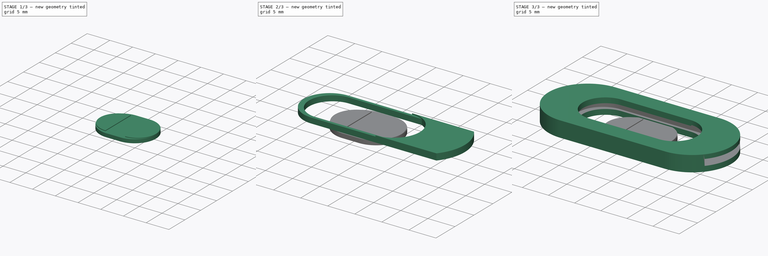
[diagram: build sequence overview — one tinted view per stage of 3, left to right]
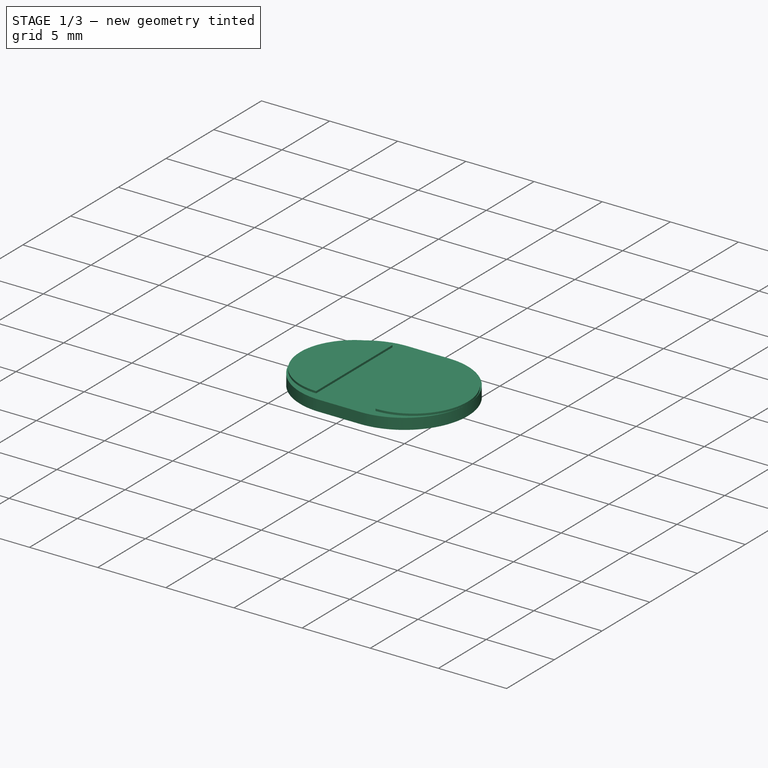
[diagram: stage 1 of 3 — iso view after this stage's code; geometry added in this stage tinted green]
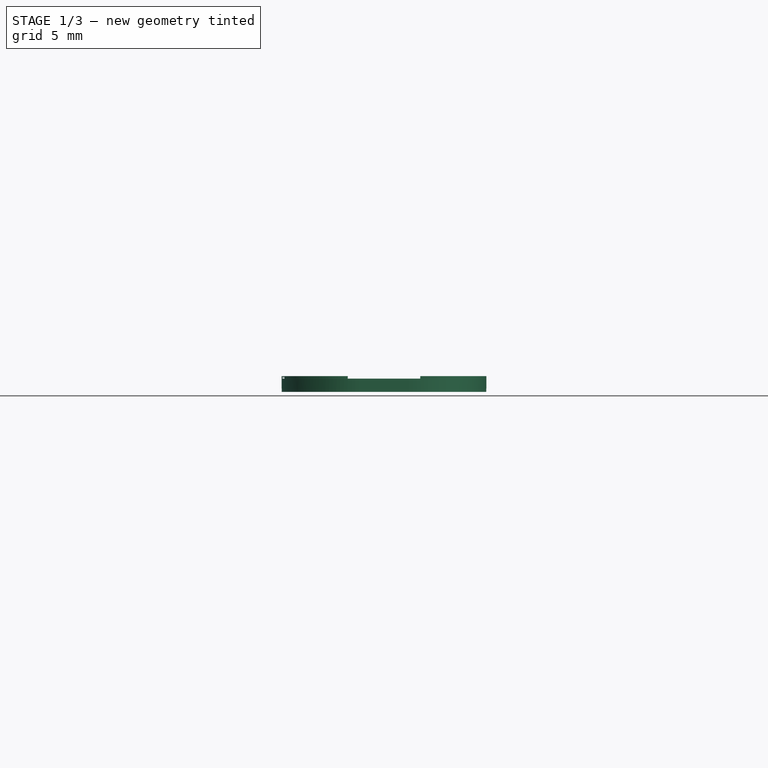
[diagram: stage 1 of 3 — front view after this stage's code; geometry added in this stage tinted green]
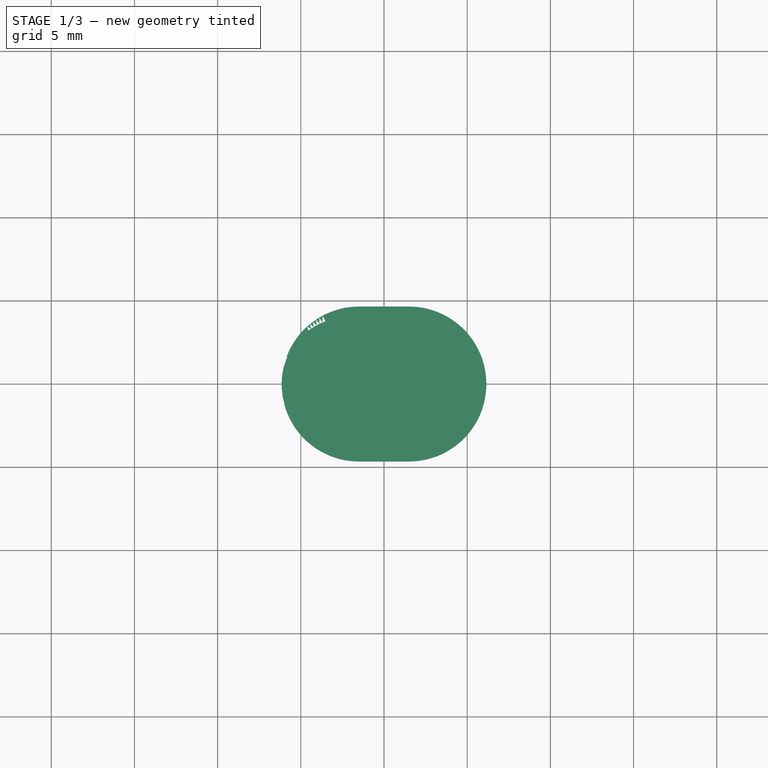
[diagram: stage 1 of 3 — top view after this stage's code; geometry added in this stage tinted green]
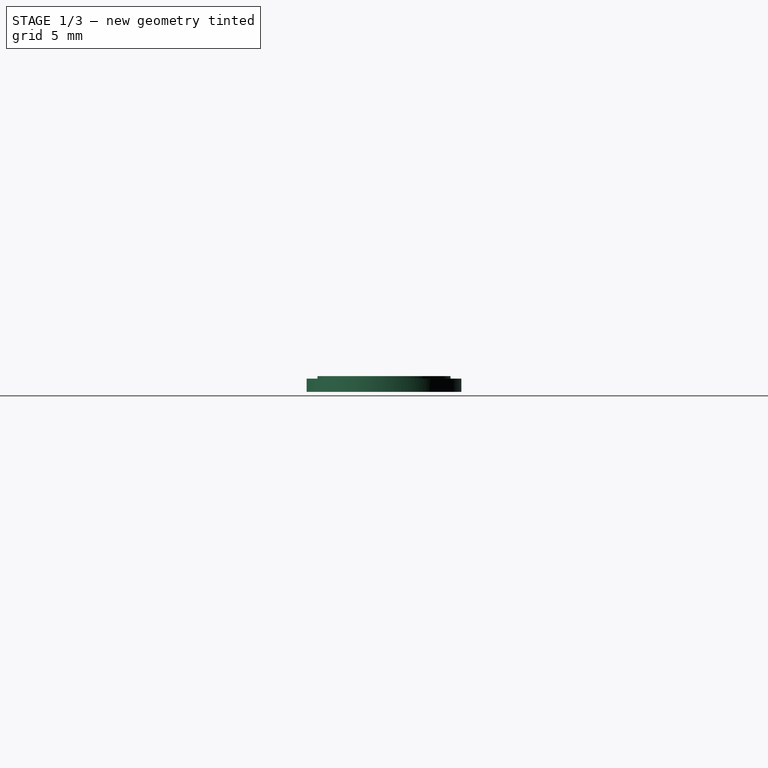
[diagram: stage 1 of 3 — right view after this stage's code; geometry added in this stage tinted green]
FCSTD DOCUMENT  (FreeCAD 0.17R13541 (Git))
Label: camera
License: All rights reserved
LicenseURL: http://en.wikipedia.org/wiki/All_rights_reserved
objects: Sketcher::SketchObject×8, Drawing::FeatureViewPython×5, Drawing::FeatureViewPart×4, PartDesign::Pad×3, Part::Extrusion×2, PartDesign::Body×2, PartDesign::ShapeBinder×1, Part::FeaturePython×1, Part::Cut×1, App::DocumentObjectGroup×1, Part::Spiral×1, Drawing::FeaturePage×1
note: 22 computed .brp shape members not serialized (recipe doc carries the construction recipe); baked Part::Feature solids carry a one-line shape summary decoded from their .brp

FEATURE [Sketcher::SketchObject] Sketch003
  MapMode = 5
  Support = -> [XY_Plane]
FEATURE [PartDesign::Body] Body  label="Cache"
  Group = -> [Sketch,Pad,Sketch001,CopyCut,Sketch002,Sketch003]
  Origin = -> Origin
  Tip = -> Pad
FEATURE [App::DocumentObjectGroup] Group  label="Support"
  Group = -> [Body,Cut]
FEATURE [Sketcher::SketchObject] Sketch004
  MapMode = 5
  Support = -> [XY_Plane001]
  sketch-geometry (4):
    g0: ArcOfCircle CenterX=-1.5 CenterY=-3e-12 CenterZ=0 NormalX=0 NormalY=0 NormalZ=1 AngleXU=0 Radius=4.65 StartAngle=1.5708 EndAngle=4.71239
    g1: ArcOfCircle CenterX=1.5 CenterY=-3e-12 CenterZ=0 NormalX=0 NormalY=0 NormalZ=1 AngleXU=0 Radius=4.65 StartAngle=4.71239 EndAngle=7.85398
    g2: LineSegment StartX=-1.5 StartY=-4.65 StartZ=0 EndX=1.5 EndY=-4.65 EndZ=0
    g3: LineSegment StartX=-1.5 StartY=4.65 StartZ=0 EndX=1.5 EndY=4.65 EndZ=0
  constraints (10):
    c: Tangent(g0,g3) = 1.5708
    c: Tangent(g0,g2) = -1.5708
    c: Tangent(g2,g1) = -1.5708
    c: Tangent(g3,g1) = 1.5708
    c: Horizontal(g2)
    c: Equal(g0,g1)
    c: Symmetric(g0,g0,g-1)
    c: Symmetric(g0,g1,g-2)
    c: DistanceY(g1,g1) = 9.3
    c: DistanceX(g2,g2) = 3
FEATURE [PartDesign::Pad] Pad001
  Length = 0.8
  Length2 = 100
  Profile = -> Sketch004
  Type = 0
FEATURE [Sketcher::SketchObject] Sketch005
  ExternalGeometry = -> [Pad001]
  MapMode = 5
  Placement = pos=(0,0,0.8) rot=(0,0,1;0rad)
  Support = -> [Pad001]
  sketch-geometry (6):
    g0: ArcOfCircle CenterX=-2.1499 CenterY=0 CenterZ=0 NormalX=0 NormalY=0 NormalZ=1 AngleXU=0 Radius=4.0001 StartAngle=1.57775 EndAngle=4.70543
    g1: ArcOfCircle CenterX=2.15 CenterY=-6.67276e-07 CenterZ=0 NormalX=0 NormalY=0 NormalZ=1 AngleXU=0 Radius=4.0001 StartAngle=4.71932 EndAngle=7.84705
    g2: GeomPoint X=-6.15 Y=0 Z=0
    g3: GeomPoint X=-6.15 Y=0 Z=0
    g4: LineSegment StartX=-2.17773 StartY=4 StartZ=0 EndX=-2.17773 EndY=-4 EndZ=0
    g5: LineSegment StartX=2.17773 StartY=4 StartZ=0 EndX=2.17773 EndY=-4 EndZ=0
  constraints (14):
    c: Equal(g0,g1)
    c: Symmetric(g0,g0,g-1)
    c: Symmetric(g0,g1,g-2)
    c: DistanceY(g1,g1) = 8
    c: PointOnObject(g2,g-3)
    c: PointOnObject(g2,g-1)
    c: PointOnObject(g3,g0)
    c: PointOnObject(g3,g-1)
    c: Coincident(g2,g3)
    c: Coincident(g4,g0)
    c: Coincident(g4,g0)
    c: Coincident(g5,g1)
    c: Vertical(g5)
    c: Coincident(g5,g1)
FEATURE [PartDesign::Pad] Pad002
  BaseFeature = -> Pad001
  Length = 0.15
  Length2 = 100
  Profile = -> Sketch005
  Type = 0
FEATURE [Sketcher::SketchObject] Sketch006
  MapMode = 5
  Support = -> [XY_Plane001]
FEATURE [Part::Spiral] Spiral  label="Spirale"
  AttacherType = Attacher::AttachEngine3D
  Growth = 0.5
  Placement = pos=(2,0,1) rot=(0,0,1;0rad)
  Radius = 0.5
  Rotations = 3.6
FEATURE [Sketcher::SketchObject] Sketch007
  MapMode = 5
  Placement = pos=(0.5,0,0.4) rot=(1,0,0;1.5708rad)
  sketch-geometry (3):
    g0: LineSegment StartX=-0.1 StartY=-0.443782 StartZ=0 EndX=0.1 EndY=-0.443782 EndZ=0
    g1: LineSegment StartX=0.1 StartY=-0.443782 StartZ=0 EndX=-0.002533 EndY=-0.243782 EndZ=0
    g2: LineSegment StartX=-0.002533 StartY=-0.243782 StartZ=0 EndX=-0.1 EndY=-0.443782 EndZ=0
  constraints (7):
    c: Horizontal(g0)
    c: Coincident(g0,g1)
    c: Coincident(g1,g2)
    c: Coincident(g2,g0)
    c: Symmetric(g0,g0,g-2)
    c: DistanceY(g0,g1) = 0.2
    c: DistanceX(g0,g0) = 0.2
FEATURE [PartDesign::Body] Body001  label="Glissiere Body"
  Group = -> [Sketch004,Pad001,Sketch005,Pad002,Sketch006,Sketch007]
  Origin = -> Origin001
  Placement = pos=(25,0,1) rot=(0,0,1;0rad)
  Tip = -> Pad002
FEATURE [Drawing::FeatureViewPart] Ortho  label="Ortho_0_0"
  Direction = (1,0,0)
  HiddenWidth = 0.15
  LineWidth = 0.35
  Rotation = -90
  Scale = 4
  ShowHiddenLines = true
  ShowSmoothLines = false
  Source = -> Cut
  Tolerance = 0.05
  ViewResult = <blob: 5988 chars omitted>
  Visible = true
  X = 106.71
  Y = 205.29
FEATURE [Drawing::FeatureViewPart] Ortho001  label="Ortho_0_1"
  Direction = (0,0,-1)
  HiddenWidth = 0.15
  LineWidth = 0.35
  Rotation = 90
  Scale = 4
  ShowHiddenLines = true
  ShowSmoothLines = false
  Source = -> Cut
  Tolerance = 0.05
  ViewResult = <blob: 3631 chars omitted>
  Visible = true
  X = 106.71
  Y = 101.65
FEATURE [Drawing::FeatureViewPart] Ortho002  label="Ortho_1_0"
  Direction = (0,-1,0)
  HiddenWidth = 0.15
  LineWidth = 0.35
  Rotation = 90
  Scale = 4
  ShowHiddenLines = true
  ShowSmoothLines = false
  Source = -> Cut
  Tolerance = 0.05
  ViewResult = <blob: 11351 chars omitted>
  Visible = true
  X = 273.35
  Y = 205.29
FEATURE [Drawing::FeatureViewPart] Ortho003  label="Ortho_1_1"
  Direction = (0.57735,-0.57735,-0.57735)
  HiddenWidth = 0.15
  LineWidth = 0.35
  Rotation = 120
  Scale = 4
  ShowHiddenLines = true
  ShowSmoothLines = false
  Source = -> Cut
  Tolerance = 0.05
  ViewResult = <blob: 7106 chars omitted>
  Visible = true
  X = 273.352
  Y = 106.546
FEATURE [Drawing::FeatureViewPython] dim001  # drawing view (typed FeaturePython)
  Rotation = 0
  ViewResult = <g> \n  <line x1="76.710000" y1="143.650000" x2="76.710000" y2="183.886322" style="stroke:rgb(0,0,255);stroke-width:0.50" />\n<line x1="136.710000" y1="143.650000" x2="136.710000" y2="183.886322" style="stroke:rgb(0,0,255);stroke-width:0.50" />\n<line x1="76.710000" y1="182.886322" x2="136.710000" y2="182.886322" style="stroke:rgb(0,0,255);stroke-width:0.50" /> \n  <polygon points="136.710000,182.886322 133.710000,181.886322 132.710000,182.886322 133.710000,183.886322" style="fill:rgb(0,0,255);stroke:rgb(0,0,255);stroke-width:0" /><polygon points="76.710000,182.886322 79.710000,183.886322 80.710000,182.886322 79.710000,181.886322" style="fill:rgb(0,0,255);stroke:rgb(0,0,255);stroke-width:0" /> \n  <text x="106.710000" y="180.886322" font-family="inherit" font-size="3.6" fill="rgb(0,0,255)" text-anchor="middle" transform="rotate(0.000000 106.710000,180.886322)" >15</text> </g>
  Visible = true
  X = 0
  Y = 0
  arrowL1 = 3
  arrowL2 = 1
  arrowW = 2
  arrow_scheme = 0
  autoPlaceOffset = 2
  autoPlaceText = true
  click1_x = 112.989
  click1_y = 182.886
  click2_x = 112.989
  click2_y = 182.886
  comma_decimal_place = false
  dimension_line_overshoot = 1
  gap_datum_points = 2
  halfDimension_linear = false
  lineColor = rgb(0,0,255)
  strokeWidth = 0.5
  textFormat_linear = %(value)3.3f
  textRenderer_color = rgb(0,0,255)
  textRenderer_family = inherit
  textRenderer_size = 3.6
  unit_custom_scale = 1
  unit_scheme = 0
FEATURE [Drawing::FeatureViewPython] dim002  # drawing view (typed FeaturePython)
  Rotation = 0
  ViewResult = <g> \n  <line x1="138.710000" y1="61.650000" x2="187.279389" y2="61.650000" style="stroke:rgb(0,0,255);stroke-width:0.50" />\n<line x1="138.710000" y1="141.650000" x2="187.279389" y2="141.650000" style="stroke:rgb(0,0,255);stroke-width:0.50" />\n<line x1="186.279389" y1="61.650000" x2="186.279389" y2="141.650000" style="stroke:rgb(0,0,255);stroke-width:0.50" /> \n  <polygon points="186.279389,141.650000 187.279389,138.650000 186.279389,137.650000 185.279389,138.650000" style="fill:rgb(0,0,255);stroke:rgb(0,0,255);stroke-width:0" /><polygon points="186.279389,61.650000 185.279389,64.650000 186.279389,65.650000 187.279389,64.650000" style="fill:rgb(0,0,255);stroke:rgb(0,0,255);stroke-width:0" /> \n  <text x="184.279389" y="101.650000" font-family="inherit" font-size="3.6" fill="rgb(0,0,255)" text-anchor="middle" transform="rotate(-90.000000 184.279389,101.650000)" >20</text> </g>
  Visible = true
  X = 0
  Y = 0
  arrowL1 = 3
  arrowL2 = 1
  arrowW = 2
  arrow_scheme = 0
  autoPlaceOffset = 2
  autoPlaceText = true
  click1_x = 186.279
  click1_y = 139.794
  click2_x = 186.279
  click2_y = 139.794
  comma_decimal_place = false
  dimension_line_overshoot = 1
  gap_datum_points = 2
  halfDimension_linear = false
  lineColor = rgb(0,0,255)
  strokeWidth = 0.5
  textFormat_linear = %(value)3.3f
  textRenderer_color = rgb(0,0,255)
  textRenderer_family = inherit
  textRenderer_size = 3.6
  unit_custom_scale = 1
  unit_scheme = 0
FEATURE [Drawing::FeatureViewPython] dim003  # drawing view (typed FeaturePython)
  Rotation = 0
  ViewResult = <g> \n  <line x1="87.409240" y1="36.683200" x2="87.409240" y2="15.286723" style="stroke:rgb(0,0,255);stroke-width:0.50" />\n<line x1="126.010760" y1="36.683200" x2="126.010760" y2="15.286723" style="stroke:rgb(0,0,255);stroke-width:0.50" />\n<line x1="87.409240" y1="16.286723" x2="126.010760" y2="16.286723" style="stroke:rgb(0,0,255);stroke-width:0.50" /> \n  <polygon points="126.010760,16.286723 123.010760,15.286723 122.010760,16.286723 123.010760,17.286723" style="fill:rgb(0,0,255);stroke:rgb(0,0,255);stroke-width:0" /><polygon points="87.409240,16.286723 90.409240,17.286723 91.409240,16.286723 90.409240,15.286723" style="fill:rgb(0,0,255);stroke:rgb(0,0,255);stroke-width:0" /> \n  <text x="106.710000" y="14.286723" font-family="inherit" font-size="3.6" fill="rgb(0,0,255)" text-anchor="middle" transform="rotate(0.000000 106.710000,14.286723)" >9.65</text> </g>
  Visible = true
  X = 0
  Y = 0
  arrowL1 = 3
  arrowL2 = 1
  arrowW = 2
  arrow_scheme = 0
  autoPlaceOffset = 2
  autoPlaceText = true
  click1_x = 120.115
  click1_y = 16.2867
  click2_x = 120.115
  click2_y = 16.2867
  comma_decimal_place = false
  dimension_line_overshoot = 1
  gap_datum_points = 2
  halfDimension_linear = false
  lineColor = rgb(0,0,255)
  strokeWidth = 0.5
  textFormat_linear = %(value)3.3f
  textRenderer_color = rgb(0,0,255)
  textRenderer_family = inherit
  textRenderer_size = 3.6
  unit_custom_scale = 1
  unit_scheme = 0
FEATURE [Drawing::FeatureViewPython] rad001  # drawing view (typed FeaturePython)
  Rotation = 0
  ViewResult = <g>  <circle cx ="106.710000" cy ="61.650000" r="0.250000" stroke="none" fill="rgb(0,0,255)" /> \n<line x1="79.058466" y1="44.449180" x2="106.710000" y2="61.650000" style="stroke:rgb(0,0,255);stroke-width:0.50" />\n<polygon points="81.236410,45.803985 83.255568,48.237706 84.632888,47.916787 84.311969,46.539467" style="fill:rgb(0,0,255);stroke:rgb(0,0,255);stroke-width:0" />\n<line x1="79.058466" y1="44.449180" x2="32.573445" y2="44.449180" style="stroke:rgb(0,0,255);stroke-width:0.50" />\n<text x="55.815955" y="42.449180" font-family="inherit" font-size="3.6" fill="rgb(0,0,255)" text-anchor="middle" transform="rotate(0.000000 55.815955,42.449180)" >R7.5</text> </g>
  Visible = true
  X = 0
  Y = 0
  arrowL1 = 3
  arrowL2 = 1
  arrowW = 2
  arrow_scheme = 0
  autoPlaceOffset = 2
  autoPlaceText = true
  centerPointDia = 0.5
  click1_x = 79.0585
  click1_y = 44.4492
  click2_x = 32.5734
  click2_y = 32.9128
  click3_x = 32.5734
  click3_y = 32.9128
  comma_decimal_place = false
  lineColor = rgb(0,0,255)
  strokeWidth = 0.5
  textFormat_radial = R%(value)3.3f
  textRenderer_color = rgb(0,0,255)
  textRenderer_family = inherit
  textRenderer_size = 3.6
  unit_custom_scale = 1
  unit_scheme = 0
FEATURE [Drawing::FeatureViewPython] dim004  # drawing view (typed FeaturePython)
  Rotation = 0
  ViewResult = <g> \n  <line x1="89.435560" y1="72.232400" x2="89.435560" y2="22.751470" style="stroke:rgb(0,0,255);stroke-width:0.50" />\n<line x1="123.984440" y1="72.232400" x2="123.984440" y2="22.751470" style="stroke:rgb(0,0,255);stroke-width:0.50" />\n<line x1="89.435560" y1="23.751470" x2="123.984440" y2="23.751470" style="stroke:rgb(0,0,255);stroke-width:0.50" /> \n  <polygon points="123.984440,23.751470 120.984440,22.751470 119.984440,23.751470 120.984440,24.751470" style="fill:rgb(0,0,255);stroke:rgb(0,0,255);stroke-width:0" /><polygon points="89.435560,23.751470 92.435560,24.751470 93.435560,23.751470 92.435560,22.751470" style="fill:rgb(0,0,255);stroke:rgb(0,0,255);stroke-width:0" /> \n  <text x="106.710000" y="21.751470" font-family="inherit" font-size="3.6" fill="rgb(0,0,255)" text-anchor="middle" transform="rotate(0.000000 106.710000,21.751470)" >8.637</text> </g>
  Visible = true
  X = 0
  Y = 0
  arrowL1 = 3
  arrowL2 = 1
  arrowW = 2
  arrow_scheme = 0
  autoPlaceOffset = 2
  autoPlaceText = true
  click1_x = 114.346
  click1_y = 23.7515
  click2_x = 114.346
  click2_y = 23.7515
  comma_decimal_place = false
  dimension_line_overshoot = 1
  gap_datum_points = 2
  halfDimension_linear = false
  lineColor = rgb(0,0,255)
  strokeWidth = 0.5
  textFormat_linear = %(value)3.3f
  textRenderer_color = rgb(0,0,255)
  textRenderer_family = inherit
  textRenderer_size = 3.6
  unit_custom_scale = 1
  unit_scheme = 0
FEATURE [Drawing::FeaturePage] Page
  EditableTexts = AUTHOR NAME | CREATION DATE | SUPERVISOR NAME | CHECK DATE | SCALE | WEIGHT | NUMBER | SHEET | TITLE | SUBTITLE
  Group = -> [Ortho,Ortho001,Ortho002,Ortho003,dim001,dim002,dim003,rad001,dim004]
  Template = D:/Program Files/FreeCAD 0.17/data/Mod/Drawing/Templates/A3_Landscape.svg
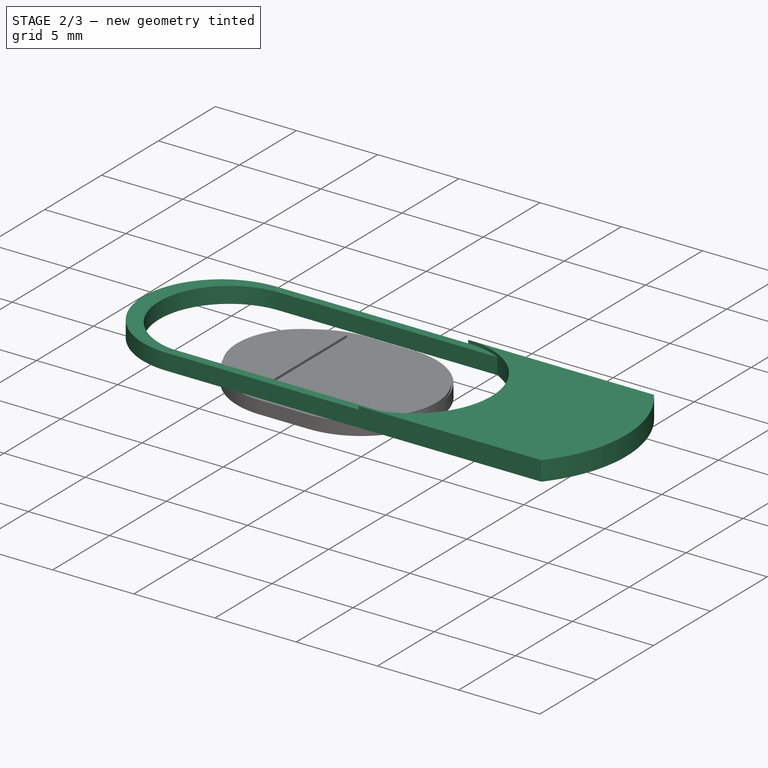
[diagram: stage 2 of 3 — iso view after this stage's code; geometry added in this stage tinted green]
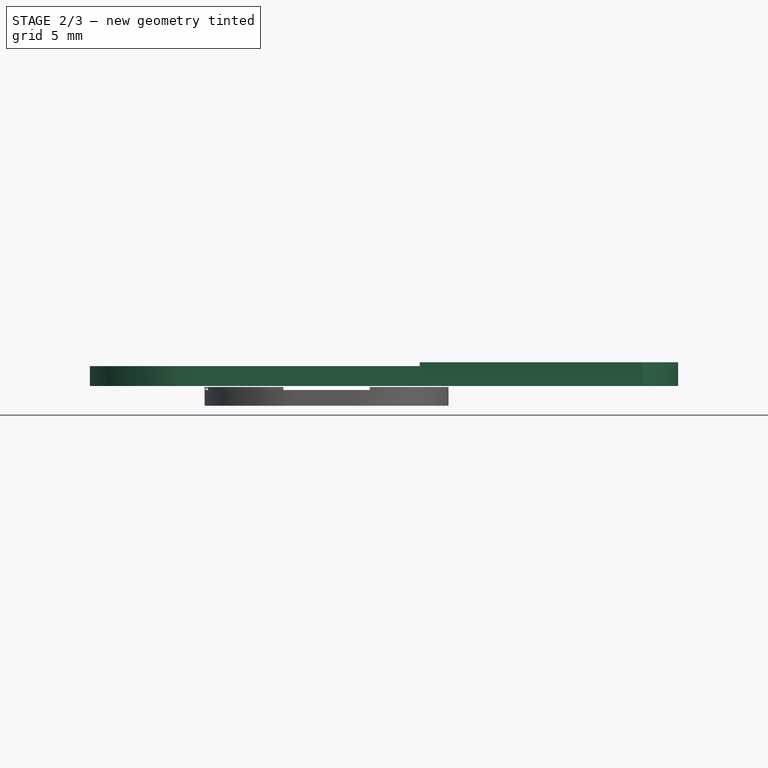
[diagram: stage 2 of 3 — front view after this stage's code; geometry added in this stage tinted green]
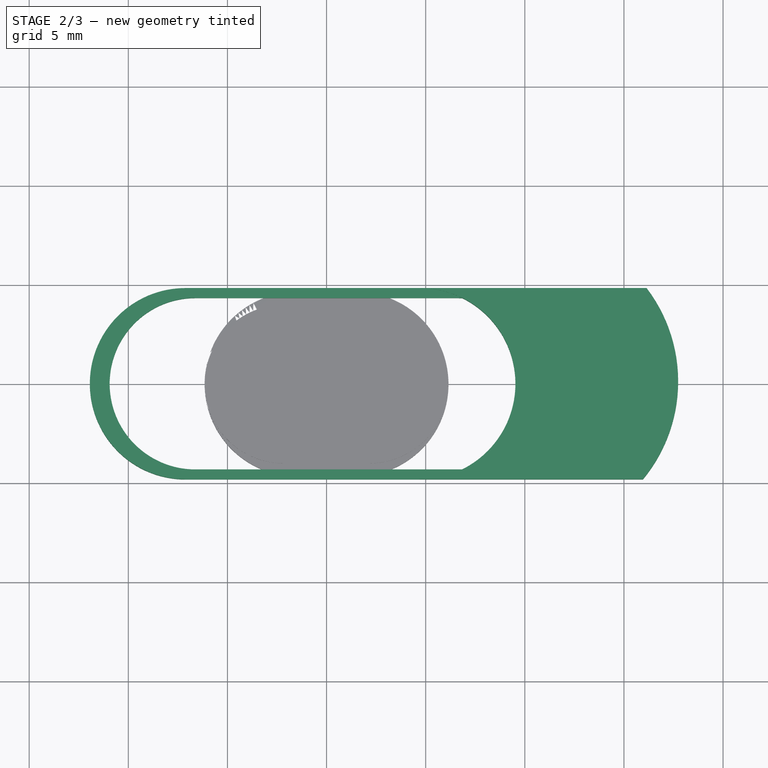
[diagram: stage 2 of 3 — top view after this stage's code; geometry added in this stage tinted green]
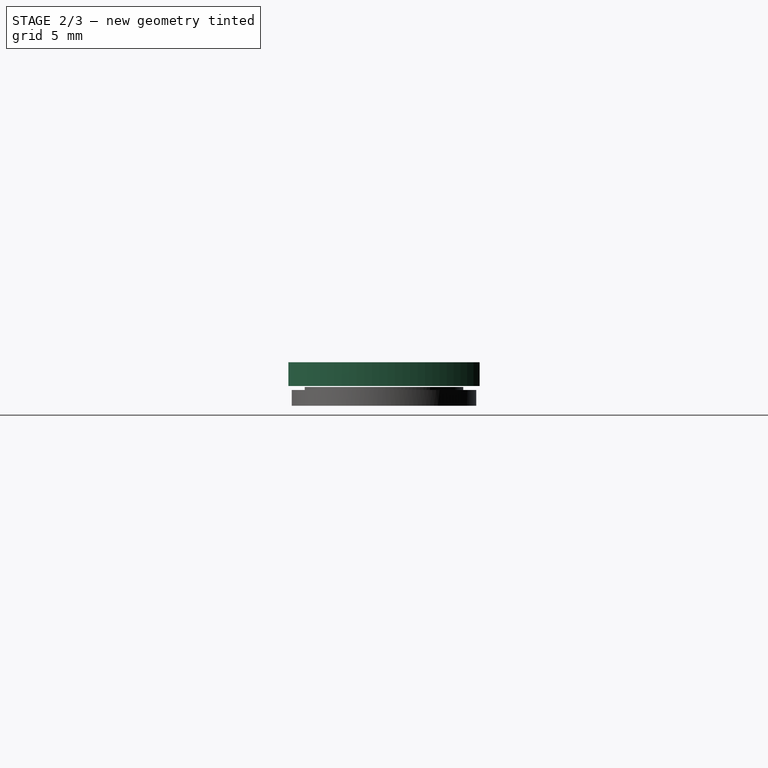
[diagram: stage 2 of 3 — right view after this stage's code; geometry added in this stage tinted green]
FEATURE [Sketcher::SketchObject] Sketch001
  AttachmentOffset = pos=(0,0,1) rot=(0,0,1;0rad)
  ExternalGeometry = -> [Sketch]
  MapMode = 5
  Placement = pos=(0,0,1) rot=(0,0,1;0rad)
  Support = -> [XY_Plane]
  sketch-geometry (8):
    g0: ArcOfCircle CenterX=-6.61602 CenterY=0 CenterZ=0 NormalX=0 NormalY=0 NormalZ=1 AngleXU=0 Radius=4.32519 StartAngle=1.5708 EndAngle=4.71239
    g1: ArcOfCircle CenterX=6.61602 CenterY=0 CenterZ=0 NormalX=0 NormalY=0 NormalZ=1 AngleXU=0 Radius=4.32519 StartAngle=4.71239 EndAngle=7.85398
    g2: LineSegment StartX=-6.61602 StartY=-4.32519 StartZ=0 EndX=6.61602 EndY=-4.32519 EndZ=0
    g3: LineSegment StartX=-6.61602 StartY=4.32519 StartZ=0 EndX=6.61602 EndY=4.32519 EndZ=0
    g4: ArcOfCircle CenterX=-7.11602 CenterY=0 CenterZ=0 NormalX=0 NormalY=0 NormalZ=1 AngleXU=0 Radius=4.82519 StartAngle=1.5708 EndAngle=4.71239
    g5: ArcOfCircle CenterX=7.11602 CenterY=0 CenterZ=0 NormalX=0 NormalY=0 NormalZ=1 AngleXU=0 Radius=4.82519 StartAngle=4.71239 EndAngle=7.85398
    g6: LineSegment StartX=-7.11602 StartY=-4.82519 StartZ=0 EndX=7.11602 EndY=-4.82519 EndZ=0
    g7: LineSegment StartX=-7.11602 StartY=4.82519 StartZ=0 EndX=7.11602 EndY=4.82519 EndZ=0
  constraints (16):
    c: Tangent(g0,g3) = 1.5708
    c: Tangent(g0,g2) = -1.5708
    c: Tangent(g2,g1) = -1.5708
    c: Tangent(g3,g1) = 1.5708
    c: Horizontal(g2)
    c: Equal(g0,g1)
    c: Coincident(g0,g-6)
    c: Coincident(g0,g-4)
    c: Coincident(g1,g-6)
    c: Tangent(g4,g7) = 1.5708
    c: Tangent(g4,g6) = -1.5708
    c: Tangent(g6,g5) = -1.5708
    c: Tangent(g7,g5) = 1.5708
    c: Horizontal(g6)
    c: Symmetric(g4,g4,g-1)
    c: DistanceY(g4,g0) = -0.5
FEATURE [Part::Extrusion] Extrude
  Base = -> Sketch001
  Dir = (0,0,1)
  DirMode = 2
  FaceMakerClass = Part::FaceMakerBullseye
  LengthFwd = 1
  LengthRev = 0
  Solid = true
  Symmetric = false
FEATURE [PartDesign::ShapeBinder] CopyCut
  Placement = pos=(0,0,5) rot=(0,0,1;0rad)
FEATURE [Sketcher::SketchObject] Sketch002
  AttachmentOffset = pos=(0,0,-4) rot=(0,0,1;0rad)
  ExternalGeometry = -> [Sketch001]
  MapMode = 5
  Placement = pos=(0,0,1) rot=(0,0,1;0rad)
  Support = -> [CopyCut]
  sketch-geometry (4):
    g0: ArcOfCircle CenterX=4.70219 CenterY=0 CenterZ=0 NormalX=0 NormalY=0 NormalZ=1 AngleXU=0 Radius=4.82519 StartAngle=4.71239 EndAngle=7.85398
    g1: ArcOfCircle CenterX=9.97922 CenterY=0.115308 CenterZ=0 NormalX=0 NormalY=0 NormalZ=1 AngleXU=0 Radius=7.75597 StartAngle=5.59259 EndAngle=6.93579
    g2: LineSegment StartX=4.70219 StartY=4.82519 StartZ=0 EndX=16.1414 EndY=4.82519 EndZ=0
    g3: LineSegment StartX=4.70219 StartY=-4.82519 StartZ=0 EndX=15.9581 EndY=-4.82519 EndZ=0
  constraints (11):
    c: Horizontal(g3)
    c: Coincident(g1,g2)
    c: PointOnObject(g1,g3)
    c: Coincident(g1,g3)
    c: Horizontal(g2)
    c: Coincident(g0,g3)
    c: Coincident(g0,g2)
    c: PointOnObject(g0,g-3)
    c: PointOnObject(g0,g-4)
    c: DistanceX(g0,g0) = 0
    c: Tangent(g0,g2)
FEATURE [Part::Extrusion] Extrude001
  Base = -> Sketch002
  Dir = (0,0,1)
  DirMode = 2
  FaceMakerClass = Part::FaceMakerBullseye
  LengthFwd = 1.2
  LengthRev = 0
  Solid = true
  Symmetric = false
FEATURE [Part::FeaturePython] Connect  # WARN: FeaturePython — macro-defined, semantics opaque (R4)
  Objects = -> [Extrude001,Extrude]
  Tolerance = 0
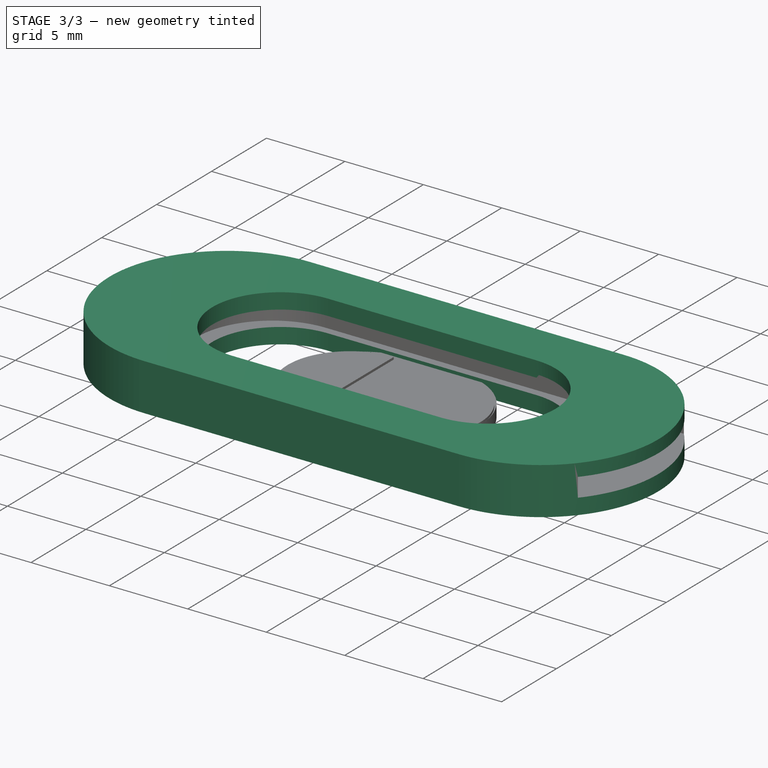
[diagram: stage 3 of 3 — iso view after this stage's code; geometry added in this stage tinted green]
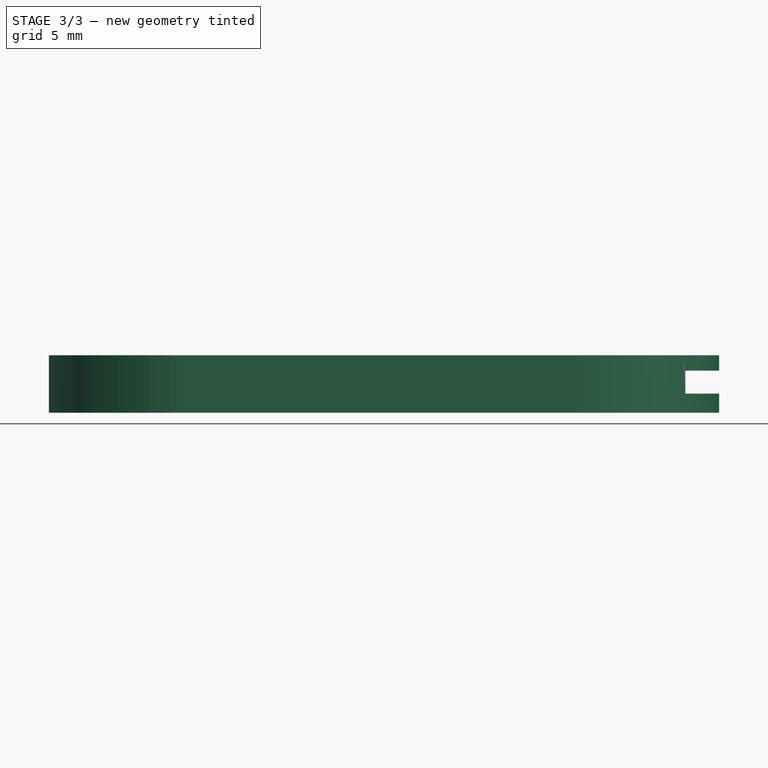
[diagram: stage 3 of 3 — front view after this stage's code; geometry added in this stage tinted green]
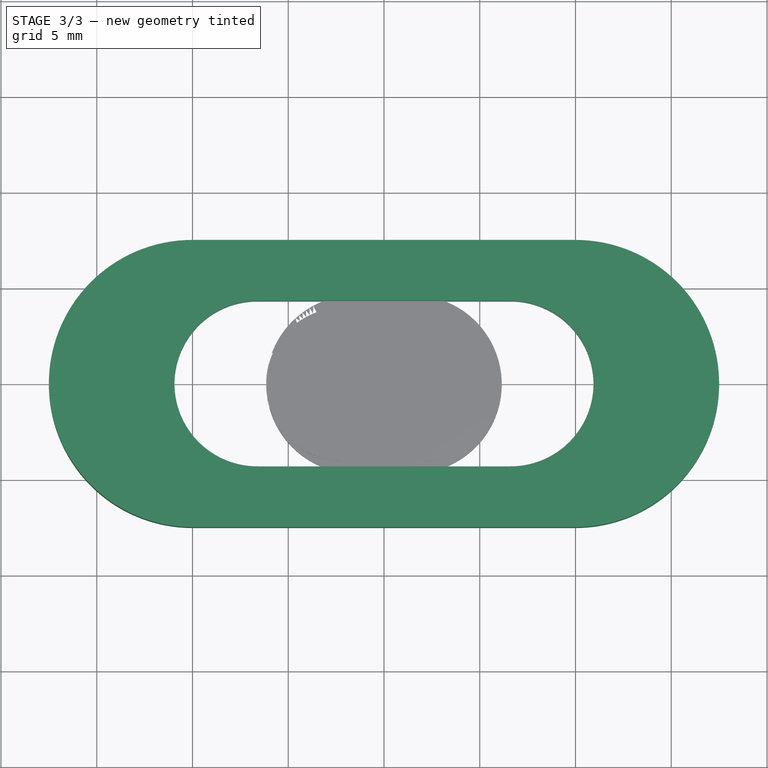
[diagram: stage 3 of 3 — top view after this stage's code; geometry added in this stage tinted green]
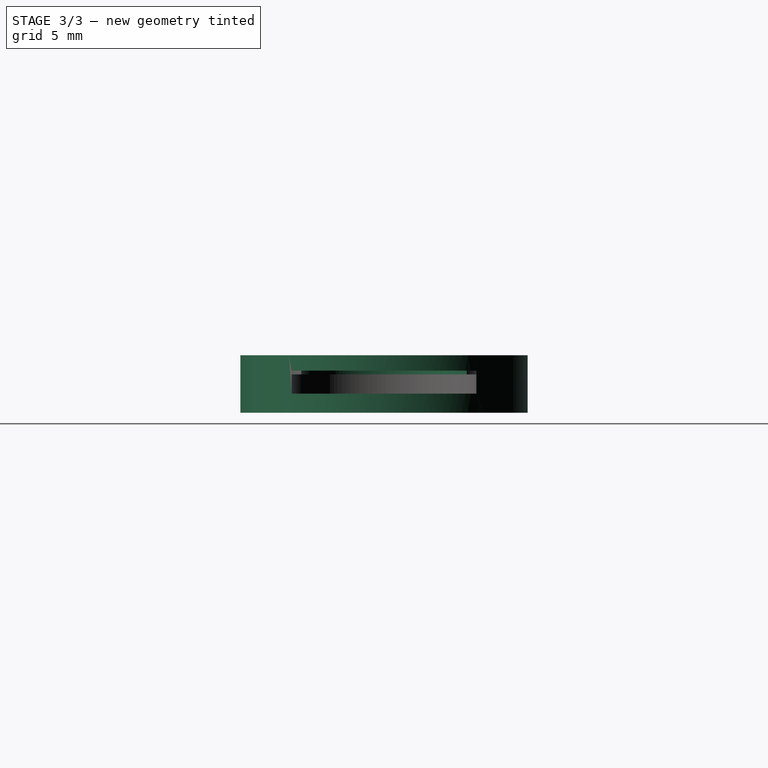
[diagram: stage 3 of 3 — right view after this stage's code; geometry added in this stage tinted green]
FEATURE [Sketcher::SketchObject] Sketch
  MapMode = 5
  Support = -> [XY_Plane]
  sketch-geometry (8):
    g0: ArcOfCircle CenterX=-10 CenterY=0 CenterZ=0 NormalX=0 NormalY=0 NormalZ=1 AngleXU=0 Radius=7.5 StartAngle=1.5708 EndAngle=4.71239
    g1: ArcOfCircle CenterX=10 CenterY=0 CenterZ=0 NormalX=0 NormalY=0 NormalZ=1 AngleXU=0 Radius=7.5 StartAngle=4.71239 EndAngle=7.85398
    g2: LineSegment StartX=-10 StartY=-7.5 StartZ=0 EndX=10 EndY=-7.5 EndZ=0
    g3: LineSegment StartX=-10 StartY=7.5 StartZ=0 EndX=10 EndY=7.5 EndZ=0
    g4: ArcOfCircle CenterX=-6.61602 CenterY=0 CenterZ=0 NormalX=0 NormalY=0 NormalZ=1 AngleXU=0 Radius=4.32519 StartAngle=1.5708 EndAngle=4.71239
    g5: ArcOfCircle CenterX=6.61602 CenterY=0 CenterZ=0 NormalX=0 NormalY=0 NormalZ=1 AngleXU=0 Radius=4.32519 StartAngle=4.71239 EndAngle=7.85398
    g6: LineSegment StartX=-6.61602 StartY=-4.32519 StartZ=0 EndX=6.61602 EndY=-4.32519 EndZ=0
    g7: LineSegment StartX=-6.61602 StartY=4.32519 StartZ=0 EndX=6.61602 EndY=4.32519 EndZ=0
  constraints (17):
    c: Tangent(g0,g3) = 1.5708
    c: Tangent(g0,g2) = -1.5708
    c: Tangent(g2,g1) = -1.5708
    c: Tangent(g3,g1) = 1.5708
    c: Horizontal(g2)
    c: Equal(g0,g1)
    c: DistanceX(g3,g3) = 20
    c: DistanceY(g0,g0) = 15
    c: Symmetric(g0,g0,g-1)
    c: Symmetric(g0,g1,g-2)
    c: Tangent(g4,g7) = 1.5708
    c: Tangent(g4,g6) = -1.5708
    c: Tangent(g6,g5) = -1.5708
    c: Tangent(g7,g5) = 1.5708
    c: Horizontal(g6)
    c: Equal(g4,g5)
    c: Symmetric(g4,g5,g-1)
FEATURE [PartDesign::Pad] Pad
  Length = 3
  Length2 = 100
  Profile = -> Sketch
  Type = 0
FEATURE [Part::Cut] Cut
  Base = -> Pad
  Tool = -> Connect
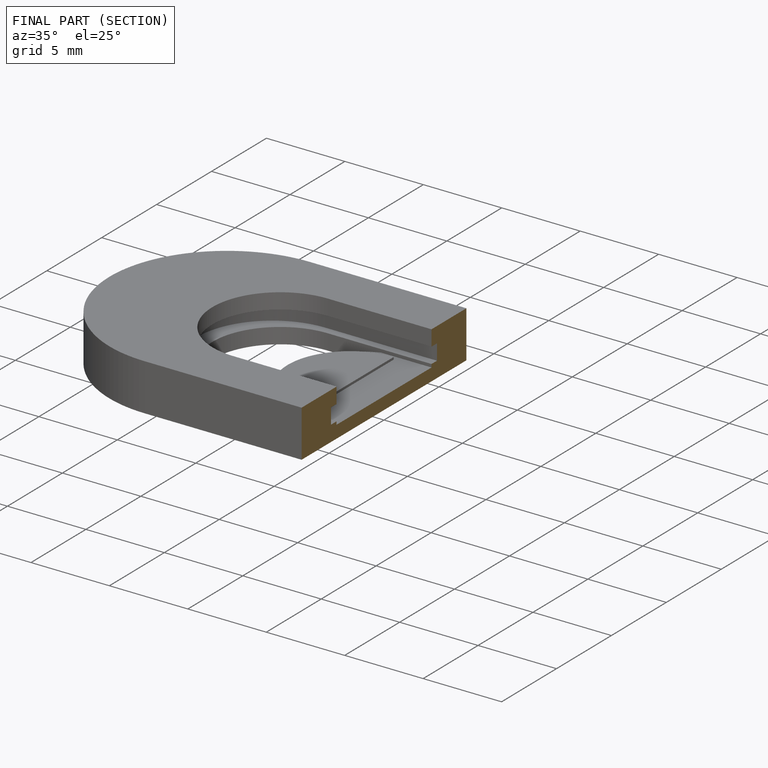
[diagram: finished part — half-section view (interior)]
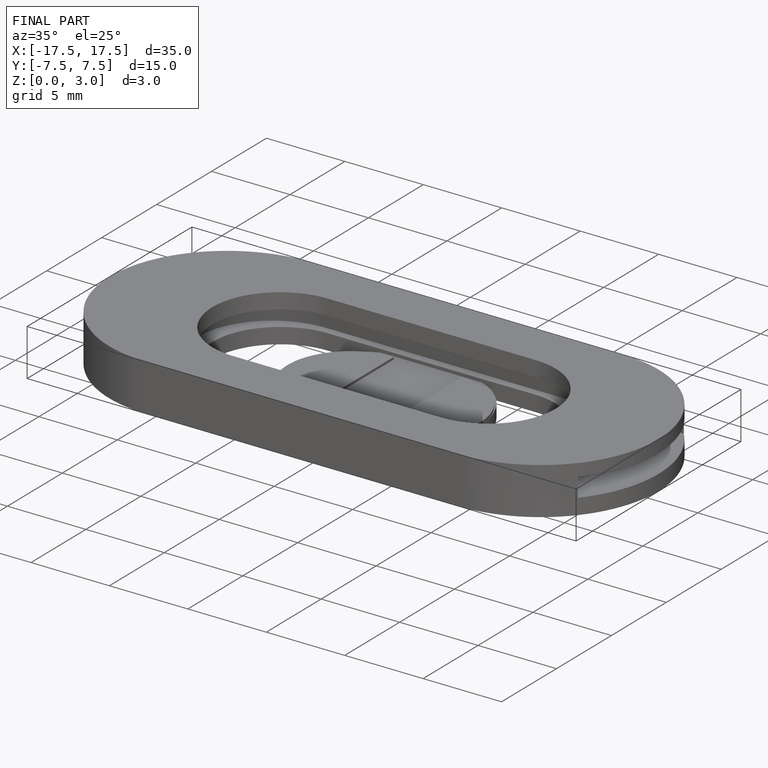
[diagram: finished part — iso view with bounding-box wireframe]
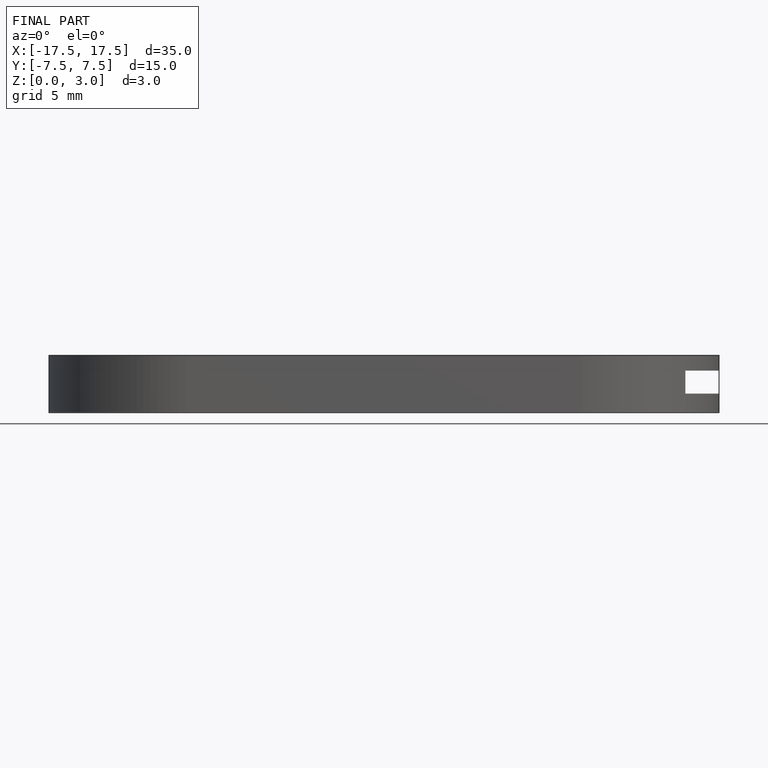
[diagram: finished part — front view with bounding-box wireframe]
